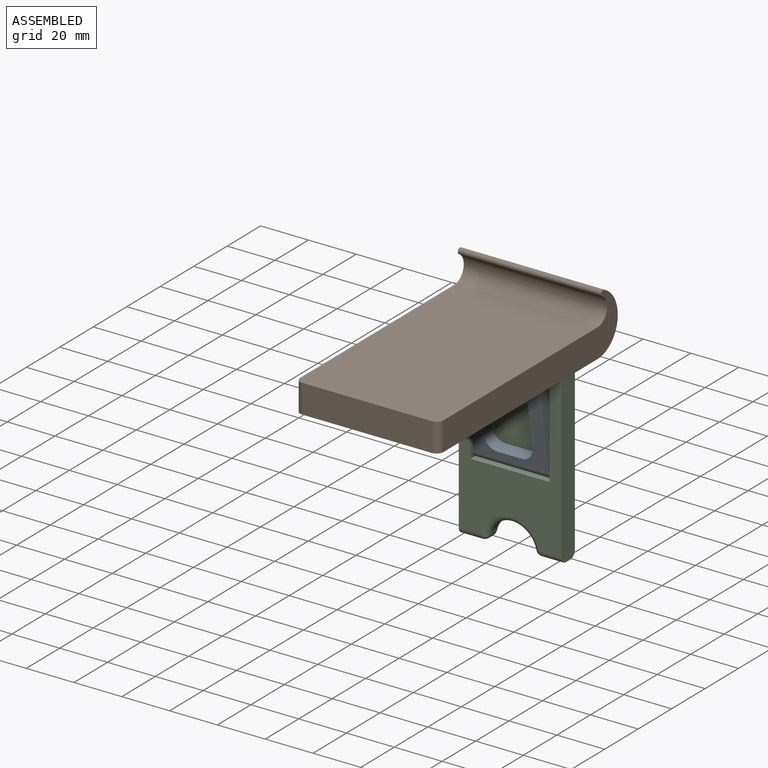
[diagram: assembled view]
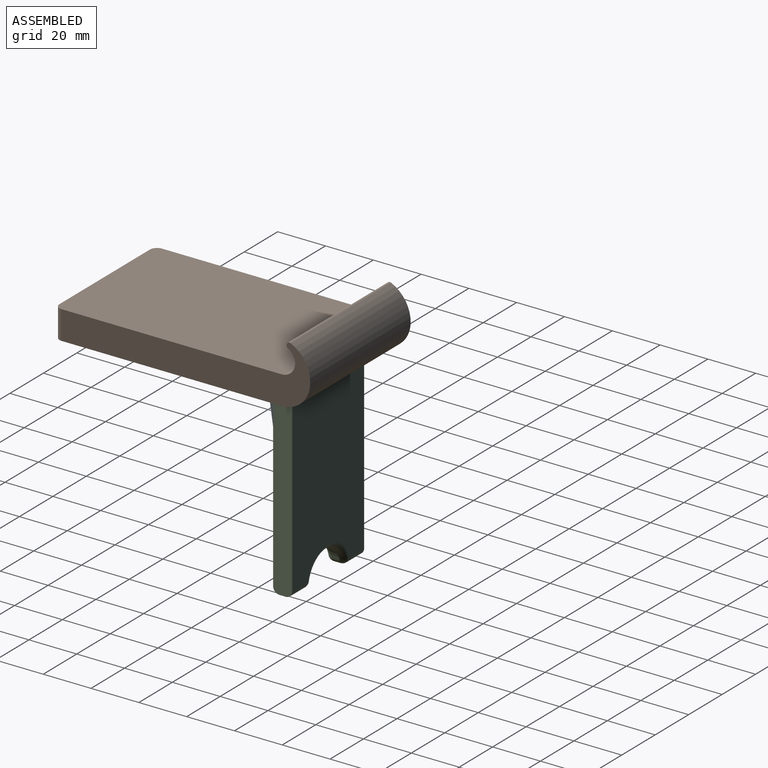
[diagram: assembled view, second angle]
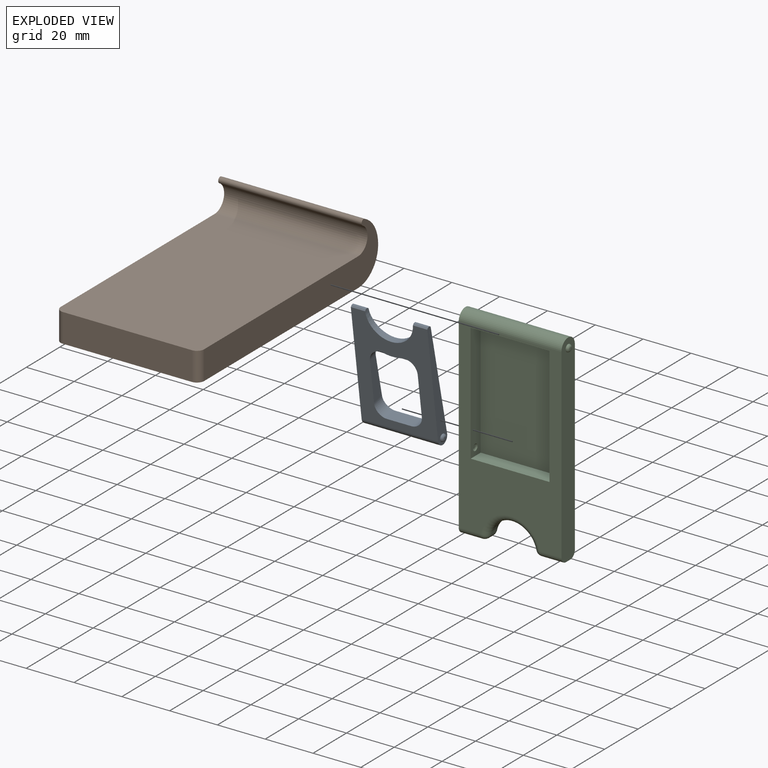
[diagram: exploded view]
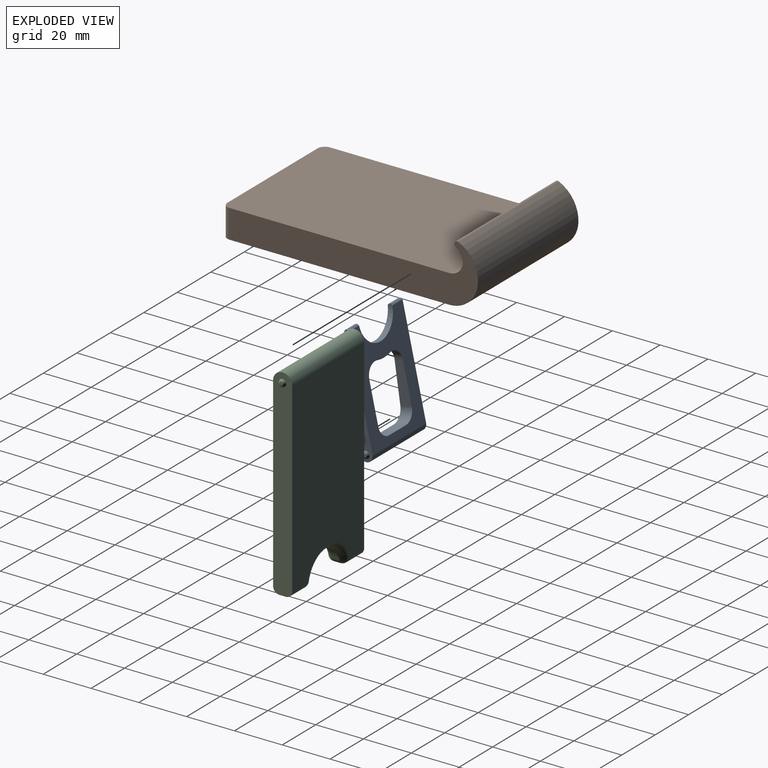
[diagram: exploded view, second angle]
ASSEMBLY  parts=3 mates=2
PART A: 24 faces, bbox 34x48.5x5.5 mm
  f0: plane 1x1mm, normal (-1,0,0), area 0.8mm2, adj f1
  f1: torus R=0.5mm, axis (-1,0,0), area 11.2mm2, adj f0,f9
  f2: plane 6x0.96mm, normal (0,1,0), area 5.8mm2, adj f8,f9,f21,f22
  f3: plane 6x0.96mm, normal (0,1,0), area 5.8mm2, adj f8,f10,f20,f23
  f4: plane 17.1x4.87mm, normal (1,0,0), area 72.1mm2, adj f11,f13,f16,f19
  f5: cylinder r=16mm len=7.62mm, axis (0,0,1), area 24.7mm2, adj f11,f13,f16,f17
  f6: plane 17.1x4.87mm, normal (-1,0,0), area 72.1mm2, adj f11,f13,f17,f18
  f7: plane 10x5.25mm, normal (0,1,0), area 52.5mm2, adj f11,f13,f18,f19
  f8: cylinder r=10mm len=20mm, axis (0,0,1), area 77.6mm2, adj f2,f3,f11,f13,f20,f21,f22,f23
  f9: plane 48.5x5.5mm, normal (-1,0,0), area 176.1mm2, adj f1,f2,f11,f12,f13,f21,f22
  f10: plane 48.5x5.5mm, normal (1,0,0), area 176.1mm2, adj f3,f11,f12,f13,f15,f20,f23
  f11: plane 45.21x32mm, normal (0,0,1), area 783.4mm2, adj f4,f5,f6,f7,f8,f9,f10,f12
  f12: cylinder r=2.75mm len=32mm, axis (-1,0,0), area 276.5mm2, adj f9,f10,f11,f13
  f13: plane 45.25x32mm, normal (0,0.08,-1), area 786.2mm2, adj f4,f5,f6,f7,f8,f9,f10,f12
  f14: plane 1x1mm, normal (1,0,0), area 0.8mm2, adj f15
  f15: torus R=0.5mm, axis (1,0,0), area 11.2mm2, adj f10,f14
  f16: cylinder r=5mm len=6.19mm, axis (0,0,1), area 29.9mm2, adj f4,f5,f11,f13
  f17: cylinder r=5mm len=6.19mm, axis (0,0,1), area 29.9mm2, adj f5,f6,f11,f13
  f18: cylinder r=5mm len=5.25mm, axis (0,0,1), area 40.2mm2, adj f6,f7,f11,f13
  f19: cylinder r=5mm len=5.25mm, axis (0,0,-1), area 40.2mm2, adj f4,f7,f11,f13
  f20: plane 6.01x0.54mm, normal (0,0.71,0.71), area 4.6mm2, adj f3,f8,f10,f11
  f21: plane 6.01x0.54mm, normal (0,0.71,0.71), area 4.6mm2, adj f2,f8,f9,f11
  f22: plane 6.01x0.54mm, normal (0,0.73,-0.68), area 4.4mm2, adj f2,f8,f9,f13
  f23: plane 6.01x0.54mm, normal (0,0.73,-0.68), area 4.4mm2, adj f3,f8,f10,f13
PART B: 45 faces, bbox 60x107x24.9 mm
  f0: plane 86.5x10mm, normal (1,0,0), area 781.8mm2, adj f1,f2,f9,f10,f12,f13,f17,f18
  f1: plane 44x9.5mm, normal (0,0,-1), area 418mm2, adj f0,f11,f12,f40
  f2: plane 95x60mm, normal (0,0,-1), area 1890.1mm2, adj f0,f3,f4,f5,f7,f8,f9,f10
  f3: plane 104x24.86mm, normal (-1,0,0), area 1287mm2, adj f2,f6,f7,f41,f42,f43,f44
  f4: plane 54x12mm, normal (0,-1,0), area 648mm2, adj f2,f6,f7,f8
  f5: plane 104x24.86mm, normal (1,0,0), area 1287mm2, adj f2,f6,f8,f41,f42,f43,f44
  f6: plane 95x60mm, normal (0,0,1), area 5696.1mm2, adj f3,f4,f5,f7,f8,f43
  f7: cylinder r=3mm len=12mm, axis (0,0,1), area 56.5mm2, adj f2,f3,f4,f6
  f8: cylinder r=3mm len=12mm, axis (0,0,-1), area 56.5mm2, adj f2,f4,f5,f6
  f9: plane 44x10mm, normal (0,1,0), area 440mm2, adj f0,f2,f11,f20
  f10: plane 44x5mm, normal (0,-1,0), area 220mm2, adj f0,f2,f11,f12
  f11: plane 86.5x10mm, normal (-1,0,0), area 781.8mm2, adj f1,f2,f9,f10,f12,f16,f17,f18
  f12: cylinder r=5mm len=44mm, axis (1,0,0), area 345.6mm2, adj f0,f1,f10,f11
  f13: torus R=0.5mm, axis (-1,0,0), area 6.4mm2, adj f0,f14
  f14: plane 1x1mm, normal (1,0,0), area 0.8mm2, adj f13
  f15: plane 1x1mm, normal (-1,0,0), area 0.8mm2, adj f16
  f16: torus R=0.5mm, axis (1,0,0), area 6.4mm2, adj f11,f15
  f17: plane 44x3mm, normal (0,0.55,-0.83), area 158.6mm2, adj f0,f11,f18,f22
  f18: plane 44x3mm, normal (0,-0.55,-0.83), area 158.6mm2, adj f0,f11,f17,f19
  f19: plane 44x3mm, normal (0,0.55,-0.83), area 158.6mm2, adj f0,f11,f18,f20
  f20: plane 44x3mm, normal (0,-0.55,-0.83), area 158.6mm2, adj f0,f9,f11,f19
  f21: plane 44x3mm, normal (0,0.55,-0.83), area 158.6mm2, adj f0,f11,f22,f24
  f22: plane 44x3mm, normal (0,-0.55,-0.83), area 158.6mm2, adj f0,f11,f17,f21
  f23: plane 44x3mm, normal (0,0.55,-0.83), area 158.6mm2, adj f0,f11,f24,f26
  f24: plane 44x3mm, normal (0,-0.55,-0.83), area 158.6mm2, adj f0,f11,f21,f23
  f25: plane 44x3mm, normal (0,0.55,-0.83), area 158.6mm2, adj f0,f11,f26,f28
  f26: plane 44x3mm, normal (0,-0.55,-0.83), area 158.6mm2, adj f0,f11,f23,f25
  f27: plane 44x3mm, normal (0,0.55,-0.83), area 158.6mm2, adj f0,f11,f28,f30
  f28: plane 44x3mm, normal (0,-0.55,-0.83), area 158.6mm2, adj f0,f11,f25,f27
  f29: plane 44x3mm, normal (0,0.55,-0.83), area 158.6mm2, adj f0,f11,f30,f32
  f30: plane 44x3mm, normal (0,-0.55,-0.83), area 158.6mm2, adj f0,f11,f27,f29
  f31: plane 44x3mm, normal (0,0.55,-0.83), area 158.6mm2, adj f0,f11,f32,f34
  f32: plane 44x3mm, normal (0,-0.55,-0.83), area 158.6mm2, adj f0,f11,f29,f31
  f33: plane 44x3mm, normal (0,0.55,-0.83), area 158.6mm2, adj f0,f11,f34,f36
  f34: plane 44x3mm, normal (0,-0.55,-0.83), area 158.6mm2, adj f0,f11,f31,f33
  f35: plane 44x3mm, normal (0,0.55,-0.83), area 158.6mm2, adj f0,f11,f36,f38
  f36: plane 44x3mm, normal (0,-0.55,-0.83), area 158.6mm2, adj f0,f11,f33,f35
  f37: plane 44x3mm, normal (0,0.55,-0.83), area 158.6mm2, adj f0,f11,f38,f39
  f38: plane 44x3mm, normal (0,-0.55,-0.83), area 158.6mm2, adj f0,f11,f35,f37
  f39: plane 44x3mm, normal (0,-0.55,-0.83), area 158.6mm2, adj f0,f11,f37,f40
  f40: plane 44x3mm, normal (0,0.55,-0.83), area 158.6mm2, adj f0,f1,f11,f39
  f41: cylinder r=12mm len=60mm, axis (-1,0,0), area 1106.1mm2, adj f2,f3,f5,f42
  f42: cylinder r=13.91mm len=60mm, axis (-1,0,0), area 987.1mm2, adj f3,f5,f41,f44
  f43: cylinder r=5.67mm len=60mm, axis (-1,0,0), area 883.8mm2, adj f3,f5,f6,f44
  f44: cylinder r=1.2mm len=60mm, axis (-1,0,0), area 233.5mm2, adj f3,f5,f42,f43
PART C: 33 faces, bbox 45x84.5x8 mm
  f0: plane 1x1mm, normal (-1,0,0), area 0.8mm2, adj f1
  f1: torus R=0.5mm, axis (-1,0,0), area 11.2mm2, adj f0,f4
  f2: plane 77.83x43mm, normal (0,0,1), area 1528.4mm2, adj f4,f5,f9,f10,f15,f16,f24,f25
  f3: plane 9.12x2.67mm, normal (0,-1,0), area 24.3mm2, adj f4,f10,f11,f12
  f4: plane 84.5x8mm, normal (-1,0,0), area 659mm2, adj f1,f2,f3,f8,f9,f10,f11
  f5: plane 84.5x8mm, normal (1,0,0), area 659mm2, adj f2,f6,f8,f9,f16,f17,f23
  f6: plane 9.12x2.67mm, normal (0,-1,0), area 24.3mm2, adj f5,f16,f17,f21
  f7: cylinder r=10mm len=19.55mm, axis (0,0,-1), area 72.5mm2, adj f12,f15,f18,f21
  f8: plane 77.83x43mm, normal (0,0,-1), area 3161.9mm2, adj f4,f5,f9,f11,f17,f18
  f9: cylinder r=4mm len=43mm, axis (-1,0,0), area 540.4mm2, adj f2,f4,f5,f8
  f10: cylinder r=2.67mm len=9.12mm, axis (1,0,0), area 38.2mm2, adj f2,f3,f4,f13
  f11: cylinder r=2.67mm len=9.12mm, axis (-1,0,0), area 38.2mm2, adj f3,f4,f8,f14
  f12: cylinder r=2.67mm len=2.67mm, axis (0,0,-1), area 9.7mm2, adj f3,f7,f13,f14
  f13: sphere r=2.67mm, area 9.7mm2, adj f10,f12,f15
  f14: sphere r=2.67mm, area 9.7mm2, adj f11,f12,f18
  f15: torus R=12.67mm, axis (0,0,-1), area 124.9mm2, adj f2,f7,f13,f19
  f16: cylinder r=2.67mm len=9.12mm, axis (1,0,0), area 38.2mm2, adj f2,f5,f6,f19
  f17: cylinder r=2.67mm len=9.12mm, axis (-1,0,0), area 38.2mm2, adj f5,f6,f8,f20
  f18: torus R=12.67mm, axis (0,0,-1), area 124.9mm2, adj f7,f8,f14,f20
  f19: sphere r=2.67mm, area 9.7mm2, adj f15,f16,f21
  f20: sphere r=2.67mm, area 9.7mm2, adj f17,f18,f21
  f21: cylinder r=2.67mm len=2.67mm, axis (0,0,-1), area 9.7mm2, adj f6,f7,f19,f20
  f22: plane 1x1mm, normal (1,0,0), area 0.8mm2, adj f23
  f23: torus R=0.5mm, axis (1,0,0), area 11.2mm2, adj f5,f22
  f24: plane 33x6mm, normal (0,-1,0), area 198mm2, adj f2,f25,f27,f28
  f25: plane 49.5x6mm, normal (1,0,0), area 291.1mm2, adj f2,f24,f26,f28,f31
  f26: plane 33x6mm, normal (0,1,0), area 198mm2, adj f2,f25,f27,f28
  f27: plane 49.5x6mm, normal (-1,0,0), area 291.1mm2, adj f2,f24,f26,f28,f30
  f28: plane 49.5x33mm, normal (0,0,1), area 1633.5mm2, adj f24,f25,f26,f27
  f29: plane 1x1mm, normal (-1,0,0), area 0.8mm2, adj f30
  f30: torus R=0.5mm, axis (1,0,0), area 6.4mm2, adj f27,f29
  f31: torus R=0.5mm, axis (-1,0,0), area 6.4mm2, adj f25,f32
  f32: plane 1x1mm, normal (1,0,0), area 0.8mm2, adj f31
PLACE A rot(axis=(0,0.63,0.78),180deg) t=(7.21,38.41,-19.67)mm
PLACE B t=(0,-10.5,31.17)mm fixed
PLACE C rot(axis=(1,0,0),90deg) t=(0,25.73,-21.06)mm
MATE revolute C.f23 <-> B.f16  axis (-1,0,0) through (-18.9,33.73,23.17)mm
MATE revolute A.f12 <-> C.f31  axis (1,0,0) through (20.6,32.48,-24.08)mm
